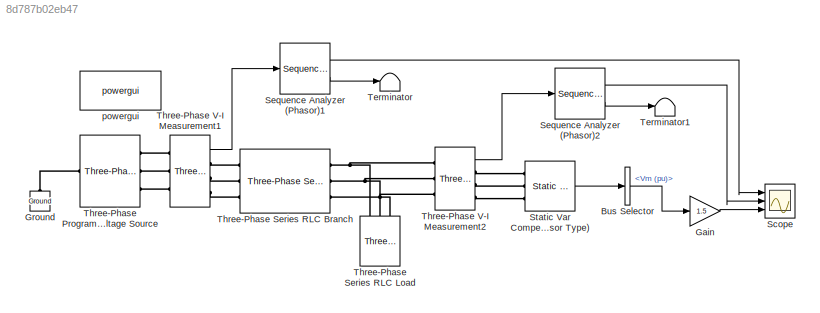
MODEL slx_8d787b02eb47
KIND model
CONFIG AbsTol = auto
CONFIG EnableMultiTasking = off
CONFIG FixedStep = auto
CONFIG MaxStep = auto
CONFIG MinStep = auto
CONFIG RelTol = 1e-3
CONFIG SampleTimeConstraint = Unconstrained
CONFIG Solver = VariableStepAuto
CONFIG SolverName = VariableStepAuto
CONFIG StartTime = 0.0
CONFIG StopTime = 1
BLOCK [BusSelector] Bus Selector
  OutputSignals = Control.Vm (pu)
  Ports = [1, 1]
BLOCK [Gain] Gain
  Gain = 1.5
BLOCK [Reference] Ground  REF=powerlib/Elements/Ground
  AttributesFormatString = \n
  Ports = [0, 0, 0, 0, 0, 1]
  SourceBlock = powerlib/Elements/Ground
  SourceProductBaseCode = MT,PS
  SourceType = Ground
BLOCK [Scope] Scope
  Floating = off
  NumInputPorts = 3
  Ports = [3]
  ScopeSpecificationString = Simulink.scopes.TimeScopeBlockCfg('CurrentConfiguration', extmgr.ConfigurationSet(extmgr.Configuration('Core','General UI',true,'FigureColor',[1 1 1]),extmgr.Configuration('Core','Source UI',true),extmgr.Configuration('Sources','WiredSimulink',true,'DataLoggingVariableName','ScopeData1'),extmgr.Configuration('Visuals','Time Domain',true,'SerializedDisplays',{struct('MinYLimReal','0.4662','MaxYLimR...<+1856ch>
BLOCK [Reference] Sequence Analyzer (Phasor)1  REF=powerlib_meascontrol/Measurements/Sequence Analyzer
(Phasor)
  Ports = [1, 2]
  SourceBlock = powerlib_meascontrol/Measurements/Sequence Analyzer\n(Phasor)
  SourceProductBaseCode = MT,PS
  SourceType = Sequence Analyzer (Phasor)
BLOCK [Reference] Sequence Analyzer (Phasor)2  REF=powerlib_meascontrol/Measurements/Sequence Analyzer
(Phasor)
  Ports = [1, 2]
  SourceBlock = powerlib_meascontrol/Measurements/Sequence Analyzer\n(Phasor)
  SourceProductBaseCode = MT,PS
  SourceType = Sequence Analyzer (Phasor)
BLOCK [Reference] Static Var Compensator (Phasor Type)  REF=factslib/Power-Electronics Based
FACTS/Static Var
Compensator
(Phasor Type)
  Ports = [0, 1, 0, 0, 0, 3]
  SourceBlock = factslib/Power-Electronics Based\nFACTS/Static Var\nCompensator\n(Phasor Type)
  SourceProductBaseCode = PS
  SourceType = Static Var Compensator (Phasor Type)
BLOCK [Terminator] Terminator
BLOCK [Terminator] Terminator1
BLOCK [Reference] Three-Phase Programmable Voltage Source  REF=powerlib/Electrical
Sources/Three-Phase
Programmable
Voltage Source
  Ports = [0, 0, 0, 0, 0, 1, 3]
  SourceBlock = powerlib/Electrical\nSources/Three-Phase\nProgrammable\nVoltage Source
  SourceProductBaseCode = MT,PS
  SourceType = Three-Phase Programmable Voltage Source
BLOCK [Reference] Three-Phase Series RLC Branch  REF=powerlib/Elements/Three-Phase
Series RLC Branch
  AttributesFormatString = \n
  Ports = [0, 0, 0, 0, 0, 3, 3]
  SourceBlock = powerlib/Elements/Three-Phase\nSeries RLC Branch
  SourceProductBaseCode = MT,PS
  SourceType = Three-Phase Series RLC Branch
BLOCK [Reference] Three-Phase Series RLC Load  REF=powerlib/Elements/Three-Phase
Series RLC Load
  AttributesFormatString = \n
  Ports = [0, 0, 0, 0, 0, 3]
  SourceBlock = powerlib/Elements/Three-Phase\nSeries RLC Load
  SourceProductBaseCode = MT,PS
  SourceType = Three-Phase Series RLC Load
BLOCK [Reference] Three-Phase V-I Measurement1  REF=powerlib/Measurements/Three-Phase
V-I Measurement
  Ports = [0, 1, 0, 0, 0, 3, 3]
  SourceBlock = powerlib/Measurements/Three-Phase\nV-I Measurement
  SourceProductBaseCode = PS
  SourceType = Three-Phase VI Measurement
BLOCK [Reference] Three-Phase V-I Measurement2  REF=powerlib/Measurements/Three-Phase
V-I Measurement
  Ports = [0, 1, 0, 0, 0, 3, 3]
  SourceBlock = powerlib/Measurements/Three-Phase\nV-I Measurement
  SourceProductBaseCode = PS
  SourceType = Three-Phase VI Measurement
BLOCK [Reference] powergui  REF=powerlib/powergui
  Ports = []
  Priority = 1
  SourceBlock = powerlib/powergui
  SourceProductBaseCode = PS
  SourceType = PSB option menu block
LINE Bus Selector:1 -> Gain:1
LINE Gain:1 -> Scope:3
LINE Sequence Analyzer (Phasor)1:1 -> Scope:1
LINE Sequence Analyzer (Phasor)1:2 -> Terminator:1
LINE Sequence Analyzer (Phasor)2:1 -> Scope:2
LINE Sequence Analyzer (Phasor)2:2 -> Terminator1:1
LINE Static Var Compensator (Phasor Type):1 -> Bus Selector:1
LINE Three-Phase V-I Measurement1:1 -> Sequence Analyzer (Phasor)1:1
LINE Three-Phase V-I Measurement2:1 -> Sequence Analyzer (Phasor)2:1
PLINE Ground:LConn1 -- Three-Phase Programmable Voltage Source:LConn1
PLINE Static Var Compensator (Phasor Type):LConn1 -- Three-Phase V-I Measurement2:RConn1
PLINE Static Var Compensator (Phasor Type):LConn2 -- Three-Phase V-I Measurement2:RConn2
PLINE Static Var Compensator (Phasor Type):LConn3 -- Three-Phase V-I Measurement2:RConn3
PLINE Three-Phase Programmable Voltage Source:RConn1 -- Three-Phase V-I Measurement1:LConn1
PLINE Three-Phase Programmable Voltage Source:RConn2 -- Three-Phase V-I Measurement1:LConn2
PLINE Three-Phase Programmable Voltage Source:RConn3 -- Three-Phase V-I Measurement1:LConn3
PLINE Three-Phase Series RLC Branch:LConn1 -- Three-Phase V-I Measurement1:RConn1
PLINE Three-Phase Series RLC Branch:LConn2 -- Three-Phase V-I Measurement1:RConn2
PLINE Three-Phase Series RLC Branch:LConn3 -- Three-Phase V-I Measurement1:RConn3
PNET net1: Three-Phase Series RLC Branch:RConn1 -- Three-Phase Series RLC Load:LConn1 -- Three-Phase V-I Measurement2:LConn1
PNET net2: Three-Phase Series RLC Branch:RConn2 -- Three-Phase Series RLC Load:LConn2 -- Three-Phase V-I Measurement2:LConn2
PNET net3: Three-Phase Series RLC Branch:RConn3 -- Three-Phase Series RLC Load:LConn3 -- Three-Phase V-I Measurement2:LConn3
note: PNET lines group multi-terminal physical nets as a canonical sorted terminal list (undirected conserving connections); 2-terminal nets keep the pairwise PLINE form
